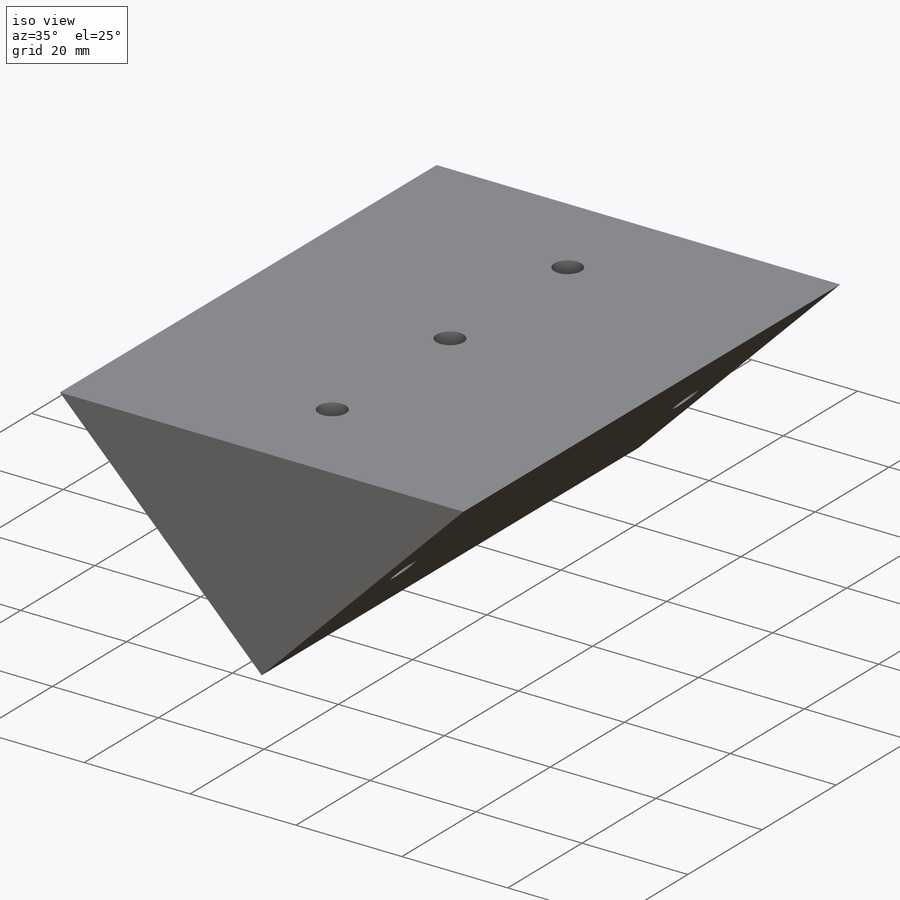
[diagram: iso view]
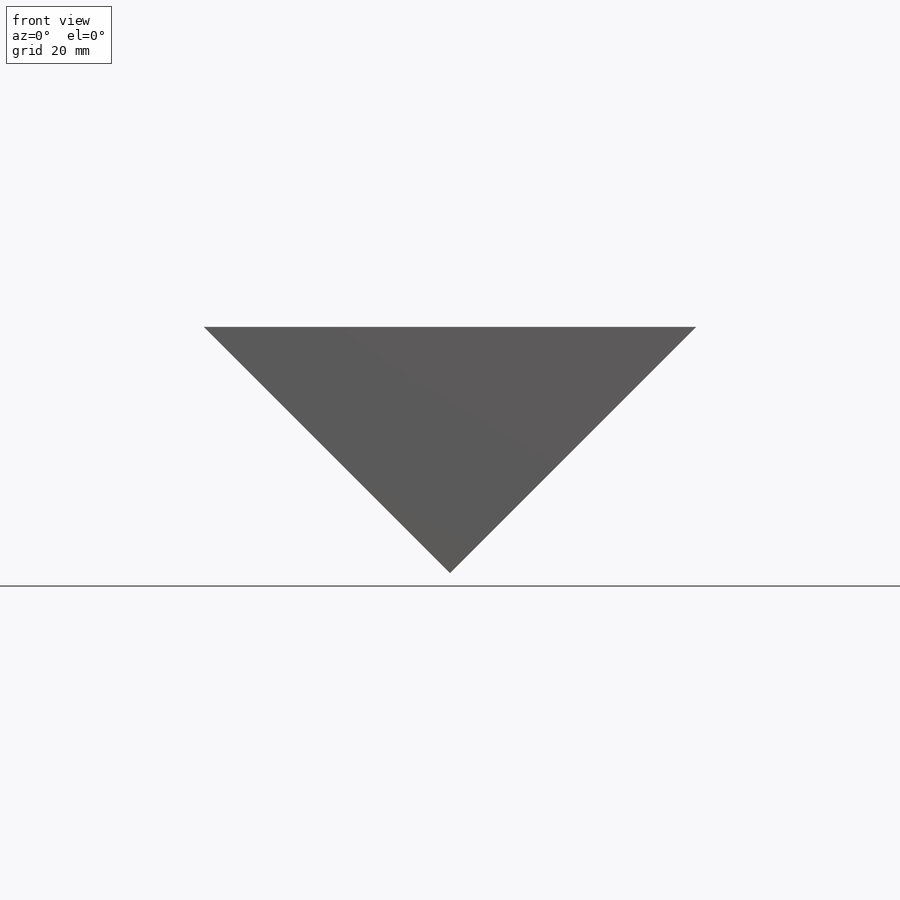
[diagram: front view]
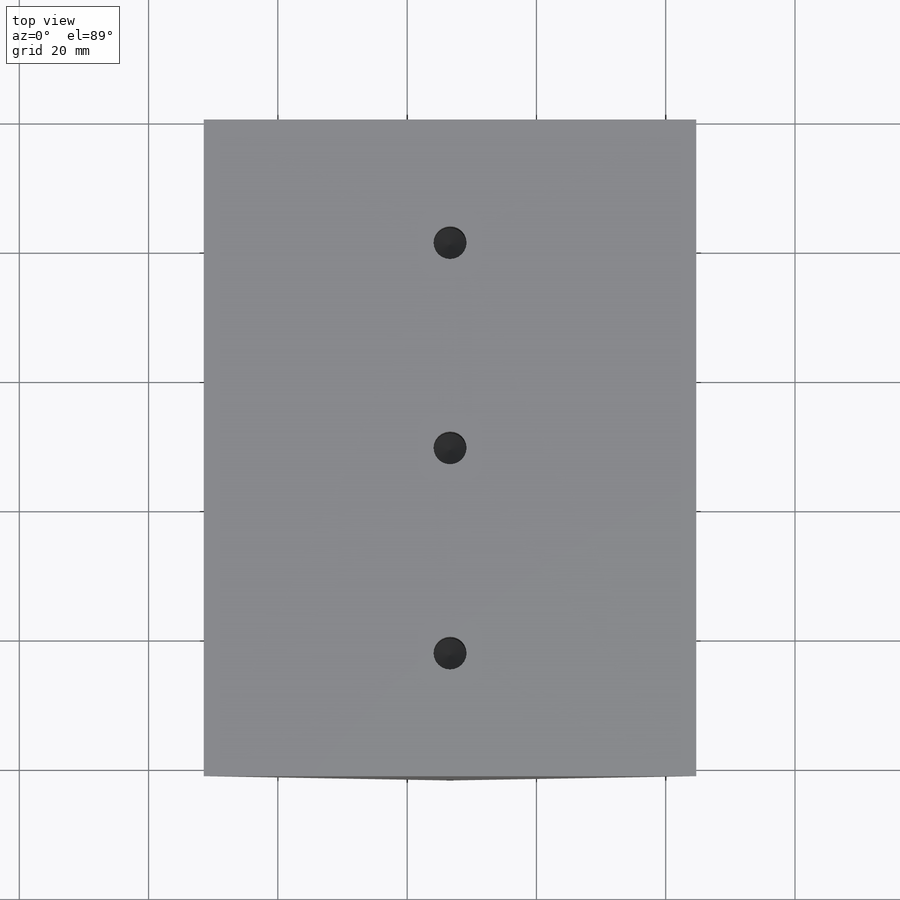
[diagram: top view]
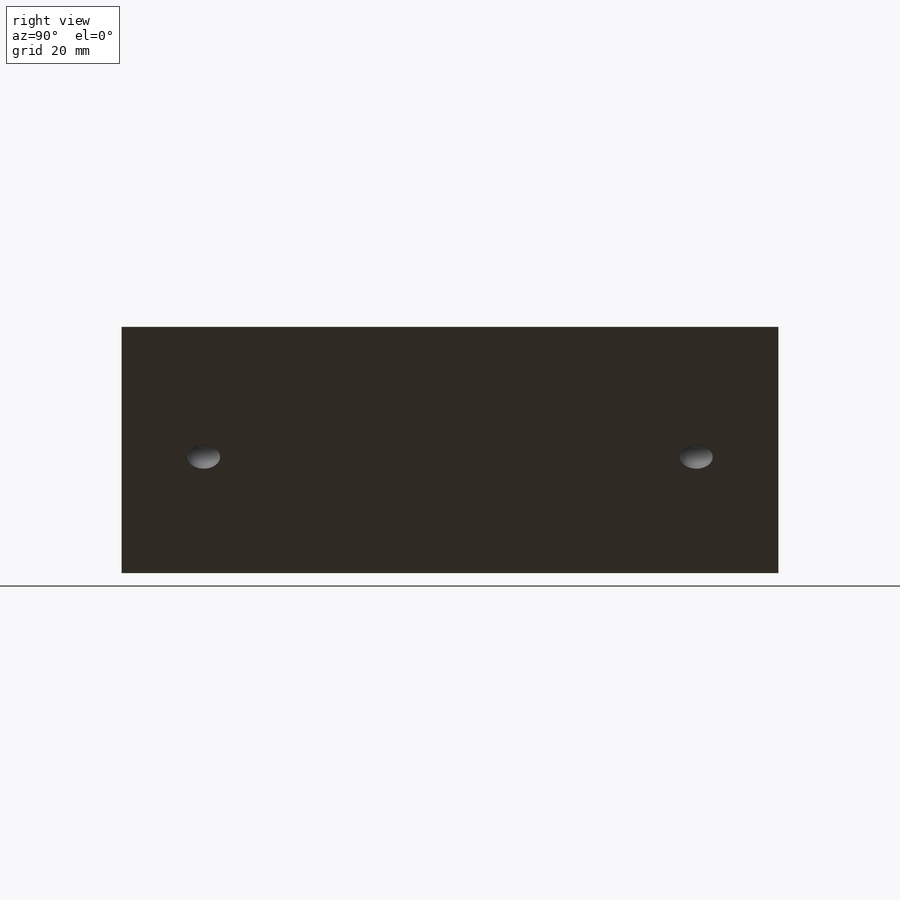
[diagram: right view]
SOLIDWORKS PART (.sldprt)
format: sldprt  version: not decoded by parser v0  size: 497,152 bytes
history: native  units: mm
features: sketch x7, thread x7, hole x3, material x1, extrude x1 (+11 scaffold rows collapsed)
feature tree (30):
  scaffold x11  (default folders/planes/origin — collapsed)
  material  "Pine"
  sketch  "Sketch2"  dims[D1=76.2mm D2=38.1mm]
  extrude  "Main extrude"  Depth=101.6mm
  hole  "Mounting holes"  Diameter=5.1054mm Depth=16.51mm
  sketch  "Sketch4"  dims[D1=63.5mm]
  sketch  "Sketch3"  dims[hole-wizard template sketch: 50 standard entries collapsed; hole parameters above]
  thread  "Hole Thread1"  Diameter=12.7mm  [1 undecoded]
  thread  "Hole Thread2"  Diameter=12.7mm  [1 undecoded]
  thread  "Hole Thread3"  Diameter=12.7mm  [1 undecoded]
  hole  "Bearing mount left"  Diameter=5.1054mm Depth=12.7mm
  sketch  "Sketch6"  dims[D1=25.4mm D2=76.2mm]
  sketch  "Sketch5"  dims[hole-wizard template sketch: 47 standard entries collapsed; hole parameters kept: c15.Tap Drill Depth=12.7mm c15.D3=~14.816244mm c15.Drill Angle=118.0deg]
  thread  "Hole Thread4"  Diameter=12.7mm  [1 undecoded]
  thread  "Hole Thread5"  Diameter=12.7mm  [1 undecoded]
  hole  "Bearing mount right"  Diameter=5.1054mm Depth=16.51mm
  sketch  "Sketch8"  dims[D1=63.5mm D2=25.4mm]
  sketch  "Sketch7"  dims[hole-wizard template sketch: 50 standard entries collapsed; hole parameters above]
  thread  "Hole Thread6"  Diameter=12.7mm  [1 undecoded]
  thread  "Hole Thread7"  Diameter=12.7mm  [1 undecoded]
decode coverage: 18 of 18 modeling features carry decoded parameters
note: ~ marks probable driven/reference dimensions
note: 7 parameter values undecoded
note: suppression state not decoded; provenance and decode notes live in map.json
